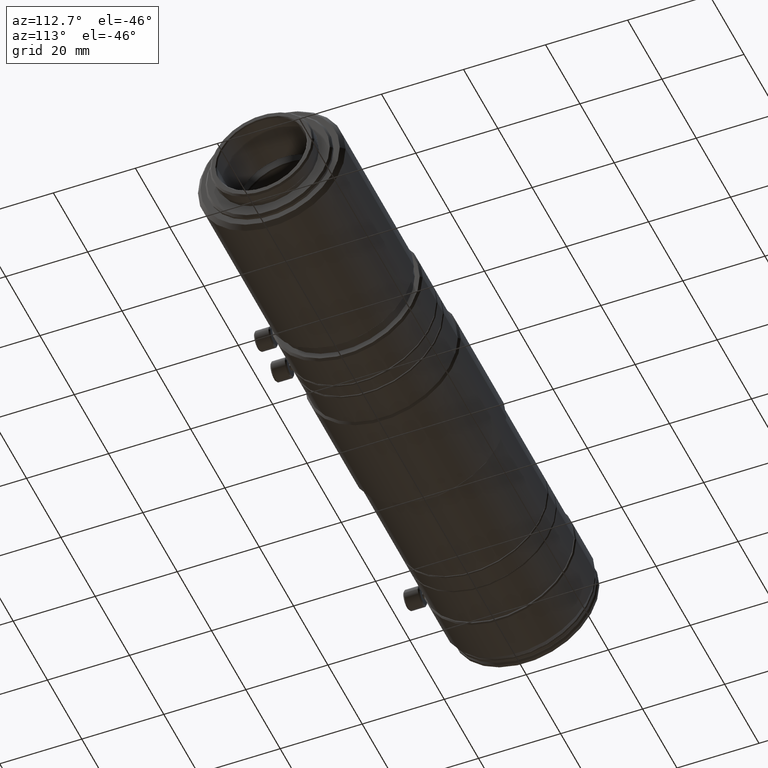
[diagram: clean part render]
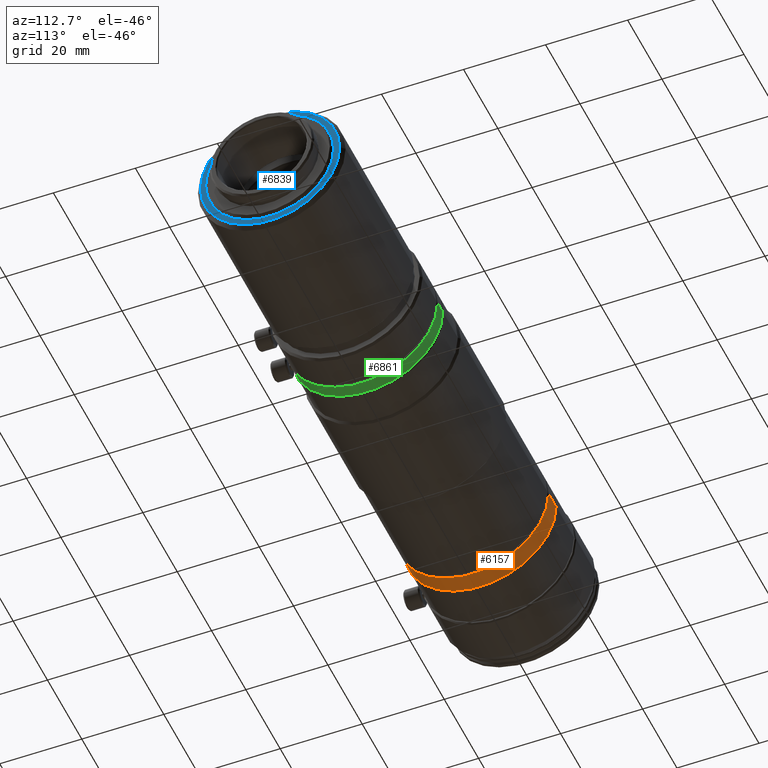
[diagram: same view with three faces highlighted in distinct colors, each labeled with its STEP entity id]
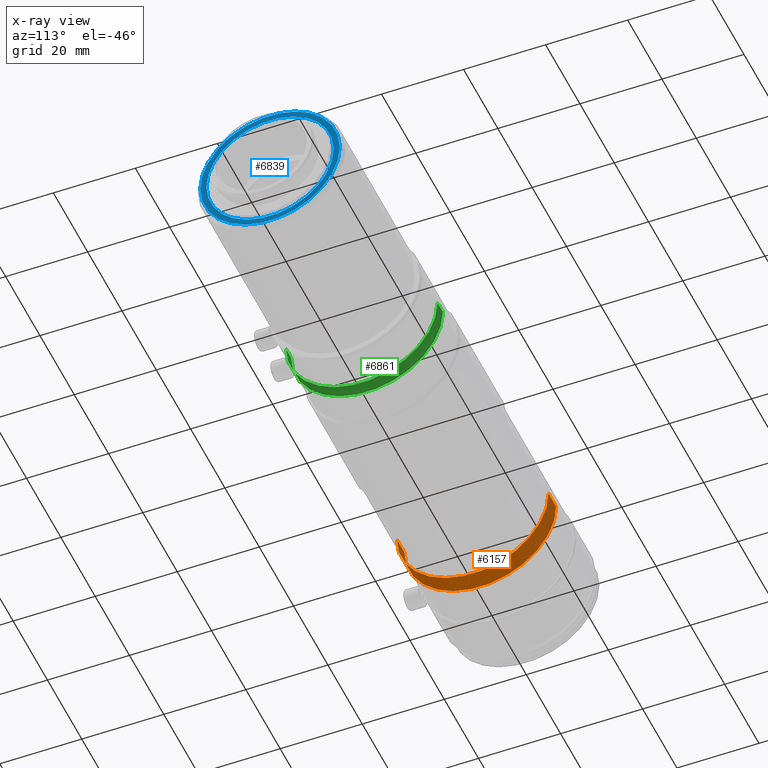
[diagram: x-ray of the same camera — body ghosted, the three highlighted faces saturated]
A machine part, auxiliary view with three faces highlighted in distinct colors.
The next image is the same camera in x-ray (body ghosted, the three faces saturated) — at least one of them is partly hidden behind the body in this view.
Their STEP definitions:

[orange] entity #6157 — the highlighted cylindrical surface (partial cylindrical patch) has radius 18.5 mm, axis along (-1, -0, -0).
#64 = VERTEX_POINT ( 'NONE', #6315 ) ;
#293 = EDGE_CURVE ( 'NONE', #2293, #5282, #2323, .T. ) ;
#677 = DIRECTION ( 'NONE',  ( 4.594672990425079700E-015, -1.000000000000000000, 0.0000000000000000000 ) ) ;
#1167 = VECTOR ( 'NONE', #6289, 1000.000000000000000 ) ;
#1366 = AXIS2_PLACEMENT_3D ( 'NONE', #4026, #5705, #677 ) ;
#1411 = AXIS2_PLACEMENT_3D ( 'NONE', #4670, #4054, #6311 ) ;
#1416 = CIRCLE ( 'NONE', #1411, 18.49999999999991800 ) ;
#1457 = LINE ( 'NONE', #6372, #6534 ) ;
#1643 = CARTESIAN_POINT ( 'NONE',  ( 8.060974633347250100, 18.49999999999989700, 2.265596578422592400E-015 ) ) ;
#1877 = DIRECTION ( 'NONE',  ( -1.000000000000000000, -4.558507189758049000E-015, -0.0000000000000000000 ) ) ;
#2064 = FACE_OUTER_BOUND ( 'NONE', #2144, .T. ) ;
#2126 = EDGE_CURVE ( 'NONE', #2293, #64, #7108, .T. ) ;
#2144 = EDGE_LOOP ( 'NONE', ( #4072, #3020, #3659, #4372 ) ) ;
#2262 = EDGE_CURVE ( 'NONE', #64, #5585, #1416, .T. ) ;
#2293 = VERTEX_POINT ( 'NONE', #5699 ) ;
#2323 = CIRCLE ( 'NONE', #6135, 18.49999999999990100 ) ;
#2722 = CARTESIAN_POINT ( 'NONE',  ( 31.23097463334740500, -18.49999999999980100, 0.0000000000000000000 ) ) ;
#3020 = ORIENTED_EDGE ( 'NONE', *, *, #293, .T. ) ;
#3659 = ORIENTED_EDGE ( 'NONE', *, *, #6547, .T. ) ;
#4026 = CARTESIAN_POINT ( 'NONE',  ( 8.060974633347335300, -9.399456682414691900E-015, 0.0000000000000000000 ) ) ;
#4054 = DIRECTION ( 'NONE',  ( -1.000000000000000000, -4.558507189758049000E-015, -0.0000000000000000000 ) ) ;
#4072 = ORIENTED_EDGE ( 'NONE', *, *, #2126, .F. ) ;
#4372 = ORIENTED_EDGE ( 'NONE', *, *, #2262, .F. ) ;
#4670 = CARTESIAN_POINT ( 'NONE',  ( 26.83097463334719600, 7.616372326934323300E-014, 0.0000000000000000000 ) ) ;
#4751 = DIRECTION ( 'NONE',  ( -1.000000000000000000, -4.558507189758049000E-015, -0.0000000000000000000 ) ) ;
#4816 = CARTESIAN_POINT ( 'NONE',  ( 31.23097463334731900, 9.622115490427923200E-014, 0.0000000000000000000 ) ) ;
#4894 = CYLINDRICAL_SURFACE ( 'NONE', #1366, 18.49999999999990800 ) ;
#5282 = VERTEX_POINT ( 'NONE', #2722 ) ;
#5309 = CARTESIAN_POINT ( 'NONE',  ( 26.83097463334727800, -18.49999999999984400, 0.0000000000000000000 ) ) ;
#5339 = DIRECTION ( 'NONE',  ( 4.500904153885794200E-015, -1.000000000000000000, 0.0000000000000000000 ) ) ;
#5585 = VERTEX_POINT ( 'NONE', #5309 ) ;
#5699 = CARTESIAN_POINT ( 'NONE',  ( 31.23097463334723800, 18.49999999999999600, 2.265596578422591200E-015 ) ) ;
#5705 = DIRECTION ( 'NONE',  ( -1.000000000000000000, -4.558507189758049000E-015, -0.0000000000000000000 ) ) ;
#6135 = AXIS2_PLACEMENT_3D ( 'NONE', #4816, #4751, #5339 ) ;
#6157 = ADVANCED_FACE ( 'NONE', ( #2064 ), #4894, .T. ) ;
#6289 = DIRECTION ( 'NONE',  ( -1.000000000000000000, -4.558507189758049000E-015, -0.0000000000000000000 ) ) ;
#6311 = DIRECTION ( 'NONE',  ( 4.500904153885789500E-015, -1.000000000000000000, 0.0000000000000000000 ) ) ;
#6315 = CARTESIAN_POINT ( 'NONE',  ( 26.83097463334711100, 18.49999999999999600, 2.265596578422593500E-015 ) ) ;
#6372 = CARTESIAN_POINT ( 'NONE',  ( 8.060974633347420600, -18.49999999999991800, 0.0000000000000000000 ) ) ;
#6534 = VECTOR ( 'NONE', #1877, 1000.000000000000000 ) ;
#6547 = EDGE_CURVE ( 'NONE', #5282, #5585, #1457, .T. ) ;
#7108 = LINE ( 'NONE', #1643, #1167 ) ;

[blue] entity #6839 — the highlighted planar face has unit normal (-1, -0, 0).
#186 = CARTESIAN_POINT ( 'NONE',  ( 149.3244124218994400, -15.49999999999891800, 0.0000000000000000000 ) ) ;
#263 = CARTESIAN_POINT ( 'NONE',  ( 149.3244124218993500, 6.345509401266385200E-013, 0.0000000000000000000 ) ) ;
#492 = CARTESIAN_POINT ( 'NONE',  ( 149.3244124218993000, 15.50000000000018700, 0.0000000000000000000 ) ) ;
#629 = ORIENTED_EDGE ( 'NONE', *, *, #6413, .F. ) ;
#718 = AXIS2_PLACEMENT_3D ( 'NONE', #492, #1623, #5556 ) ;
#831 = DIRECTION ( 'NONE',  ( 4.898042755699349400E-015, -1.000000000000000000, 0.0000000000000000000 ) ) ;
#897 = EDGE_LOOP ( 'NONE', ( #2090, #2612 ) ) ;
#974 = AXIS2_PLACEMENT_3D ( 'NONE', #1678, #5616, #2242 ) ;
#1052 = PLANE ( 'NONE',  #718 ) ;
#1197 = CARTESIAN_POINT ( 'NONE',  ( 149.3244124218993500, 6.345509401266385200E-013, 0.0000000000000000000 ) ) ;
#1278 = VERTEX_POINT ( 'NONE', #186 ) ;
#1335 = VERTEX_POINT ( 'NONE', #1931 ) ;
#1623 = DIRECTION ( 'NONE',  ( -1.000000000000000000, -4.558507189758049000E-015, 0.0000000000000000000 ) ) ;
#1678 = CARTESIAN_POINT ( 'NONE',  ( 149.3244124218993500, 6.345509401266385200E-013, 0.0000000000000000000 ) ) ;
#1745 = DIRECTION ( 'NONE',  ( 4.898042755699349400E-015, -1.000000000000000000, 0.0000000000000000000 ) ) ;
#1931 = CARTESIAN_POINT ( 'NONE',  ( 149.3244124218993000, 15.50000000000018700, 1.898202538678342700E-015 ) ) ;
#2090 = ORIENTED_EDGE ( 'NONE', *, *, #2184, .T. ) ;
#2184 = EDGE_CURVE ( 'NONE', #1278, #1335, #5297, .T. ) ;
#2242 = DIRECTION ( 'NONE',  ( 5.372046893347686600E-015, -1.000000000000000000, 0.0000000000000000000 ) ) ;
#2612 = ORIENTED_EDGE ( 'NONE', *, *, #3815, .T. ) ;
#2687 = AXIS2_PLACEMENT_3D ( 'NONE', #1197, #5126, #1745 ) ;
#2702 = VERTEX_POINT ( 'NONE', #5320 ) ;
#2829 = DIRECTION ( 'NONE',  ( -1.000000000000000000, -4.558507189758049000E-015, -0.0000000000000000000 ) ) ;
#2852 = CIRCLE ( 'NONE', #4647, 16.99999999999955200 ) ;
#2967 = CARTESIAN_POINT ( 'NONE',  ( 149.3244124218994400, -16.99999999999892000, 0.0000000000000000000 ) ) ;
#3406 = VERTEX_POINT ( 'NONE', #2967 ) ;
#3564 = EDGE_LOOP ( 'NONE', ( #5354, #629 ) ) ;
#3587 = CIRCLE ( 'NONE', #974, 15.49999999999955200 ) ;
#3815 = EDGE_CURVE ( 'NONE', #1335, #1278, #3587, .T. ) ;
#3902 = CARTESIAN_POINT ( 'NONE',  ( 149.3244124218993500, 6.345509401266385200E-013, 0.0000000000000000000 ) ) ;
#4185 = DIRECTION ( 'NONE',  ( -1.000000000000000000, -4.558507189758049000E-015, -0.0000000000000000000 ) ) ;
#4602 = FACE_OUTER_BOUND ( 'NONE', #3564, .T. ) ;
#4647 = AXIS2_PLACEMENT_3D ( 'NONE', #263, #4185, #831 ) ;
#5126 = DIRECTION ( 'NONE',  ( -1.000000000000000000, -4.558507189758049000E-015, -0.0000000000000000000 ) ) ;
#5297 = CIRCLE ( 'NONE', #6068, 15.49999999999955200 ) ;
#5320 = CARTESIAN_POINT ( 'NONE',  ( 149.3244124218993000, 17.00000000000018800, 2.143131898507814200E-015 ) ) ;
#5354 = ORIENTED_EDGE ( 'NONE', *, *, #5855, .F. ) ;
#5556 = DIRECTION ( 'NONE',  ( 4.558507189758049000E-015, -1.000000000000000000, 0.0000000000000000000 ) ) ;
#5616 = DIRECTION ( 'NONE',  ( -1.000000000000000000, -4.558507189758049000E-015, -0.0000000000000000000 ) ) ;
#5855 = EDGE_CURVE ( 'NONE', #3406, #2702, #2852, .T. ) ;
#5919 = FACE_BOUND ( 'NONE', #897, .T. ) ;
#6068 = AXIS2_PLACEMENT_3D ( 'NONE', #3902, #2829, #6776 ) ;
#6413 = EDGE_CURVE ( 'NONE', #2702, #3406, #6462, .T. ) ;
#6462 = CIRCLE ( 'NONE', #2687, 16.99999999999955200 ) ;
#6776 = DIRECTION ( 'NONE',  ( 5.372046893347686600E-015, -1.000000000000000000, 0.0000000000000000000 ) ) ;
#6839 = ADVANCED_FACE ( 'NONE', ( #4602, #5919 ), #1052, .F. ) ;

[green] entity #6861 — the highlighted cylindrical surface (partial cylindrical patch) has radius 18.5 mm, axis along (-1, -0, -0).
#71 = DIRECTION ( 'NONE',  ( -1.000000000000000000, -4.558507189758049000E-015, -0.0000000000000000000 ) ) ;
#610 = VERTEX_POINT ( 'NONE', #656 ) ;
#614 = VECTOR ( 'NONE', #1741, 1000.000000000000000 ) ;
#656 = CARTESIAN_POINT ( 'NONE',  ( 92.83097463334732400, -18.49999999999924300, 0.0000000000000000000 ) ) ;
#682 = CIRCLE ( 'NONE', #2340, 18.49999999999962000 ) ;
#763 = ORIENTED_EDGE ( 'NONE', *, *, #3104, .F. ) ;
#1249 = CIRCLE ( 'NONE', #5402, 18.49999999999960600 ) ;
#1460 = AXIS2_PLACEMENT_3D ( 'NONE', #6113, #7230, #2169 ) ;
#1738 = CARTESIAN_POINT ( 'NONE',  ( 8.060974633347420600, -18.49999999999962000, 0.0000000000000000000 ) ) ;
#1741 = DIRECTION ( 'NONE',  ( -1.000000000000000000, -4.558507189758049000E-015, -0.0000000000000000000 ) ) ;
#1933 = EDGE_LOOP ( 'NONE', ( #763, #2732, #2483, #5102 ) ) ;
#2169 = DIRECTION ( 'NONE',  ( 4.594672990425153900E-015, -1.000000000000000000, 0.0000000000000000000 ) ) ;
#2310 = CARTESIAN_POINT ( 'NONE',  ( 8.060974633347250100, 18.49999999999959900, 2.265596578422555700E-015 ) ) ;
#2340 = AXIS2_PLACEMENT_3D ( 'NONE', #3394, #71, #3984 ) ;
#2483 = ORIENTED_EDGE ( 'NONE', *, *, #5393, .T. ) ;
#2669 = CARTESIAN_POINT ( 'NONE',  ( 95.93097463334734700, -18.49999999999921100, 0.0000000000000000000 ) ) ;
#2728 = CYLINDRICAL_SURFACE ( 'NONE', #1460, 18.49999999999960900 ) ;
#2732 = ORIENTED_EDGE ( 'NONE', *, *, #3524, .T. ) ;
#2920 = FACE_OUTER_BOUND ( 'NONE', #1933, .T. ) ;
#3062 = CARTESIAN_POINT ( 'NONE',  ( 95.93097463334726200, 3.911565700816247800E-013, 0.0000000000000000000 ) ) ;
#3104 = EDGE_CURVE ( 'NONE', #5138, #5482, #3580, .T. ) ;
#3394 = CARTESIAN_POINT ( 'NONE',  ( 92.83097463334725300, 3.770251977933747100E-013, 0.0000000000000000000 ) ) ;
#3484 = CARTESIAN_POINT ( 'NONE',  ( 92.83097463334716800, 18.50000000000000000, 2.265596578422556100E-015 ) ) ;
#3524 = EDGE_CURVE ( 'NONE', #5138, #6781, #1249, .T. ) ;
#3580 = LINE ( 'NONE', #2310, #614 ) ;
#3635 = DIRECTION ( 'NONE',  ( 4.500904153885866000E-015, -1.000000000000000000, 0.0000000000000000000 ) ) ;
#3984 = DIRECTION ( 'NONE',  ( 4.500904153885862000E-015, -1.000000000000000000, 0.0000000000000000000 ) ) ;
#5102 = ORIENTED_EDGE ( 'NONE', *, *, #6405, .F. ) ;
#5138 = VERTEX_POINT ( 'NONE', #6530 ) ;
#5393 = EDGE_CURVE ( 'NONE', #6781, #610, #6042, .T. ) ;
#5402 = AXIS2_PLACEMENT_3D ( 'NONE', #3062, #6992, #3635 ) ;
#5482 = VERTEX_POINT ( 'NONE', #3484 ) ;
#5682 = DIRECTION ( 'NONE',  ( -1.000000000000000000, -4.558507189758049000E-015, -0.0000000000000000000 ) ) ;
#6042 = LINE ( 'NONE', #1738, #7163 ) ;
#6113 = CARTESIAN_POINT ( 'NONE',  ( 8.060974633347335300, -9.399456682414691900E-015, 0.0000000000000000000 ) ) ;
#6405 = EDGE_CURVE ( 'NONE', #5482, #610, #682, .T. ) ;
#6530 = CARTESIAN_POINT ( 'NONE',  ( 95.93097463334717600, 18.49999999999999600, 2.265596578422554900E-015 ) ) ;
#6781 = VERTEX_POINT ( 'NONE', #2669 ) ;
#6861 = ADVANCED_FACE ( 'NONE', ( #2920 ), #2728, .T. ) ;
#6992 = DIRECTION ( 'NONE',  ( -1.000000000000000000, -4.558507189758049000E-015, -0.0000000000000000000 ) ) ;
#7163 = VECTOR ( 'NONE', #5682, 1000.000000000000000 ) ;
#7230 = DIRECTION ( 'NONE',  ( -1.000000000000000000, -4.558507189758049000E-015, -0.0000000000000000000 ) ) ;